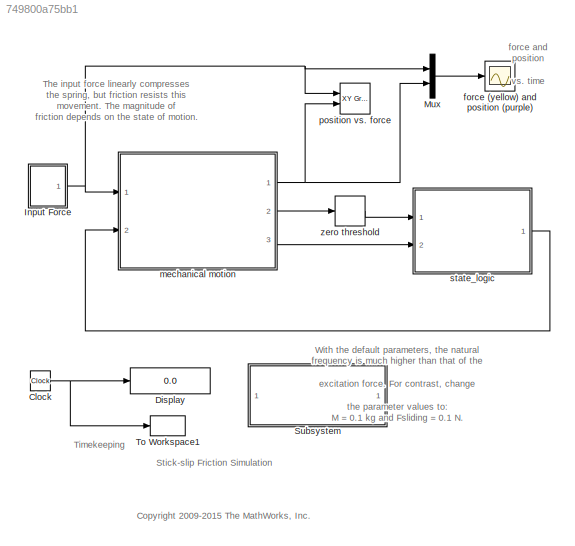
MODEL slx_749800a75bb1
KIND model
CONFIG AbsTol = 1e-6
CONFIG EnableMultiTasking = off
CONFIG FixedStep = auto
CONFIG MaxStep = auto
CONFIG MinStep = auto
CONFIG PreLoadFcn = load('sf_stickslipdat')
CONFIG RelTol = 1e-3
CONFIG SampleTimeConstraint = Unconstrained
CONFIG Solver = ode15s
CONFIG SolverName = ode15s
CONFIG StartTime = 0.0
CONFIG StopTime = 20
BLOCK [Clock] Clock
BLOCK [Display] Display
  Decimation = 1
  Ports = [1]
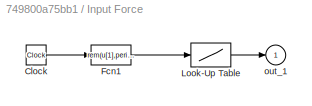
BLOCK [SubSystem] Input Force
  Ports = [0, 1]
  RequestExecContextInheritance = off
  Variant = off
BLOCK [Clock] Input Force/Clock
BLOCK [Fcn] Input Force/Fcn1
  Expr = rem(u[1],period)
BLOCK [Lookup] Input Force/Look-Up Table
  InputValues = rep_seq_t
  Table = rep_seq_y
BLOCK [Outport] Input Force/out_1
  IconDisplay = Port number
  InitialOutput = 0
BLOCK [Mux] Mux
  Inputs = 2
  Ports = [2, 1]
BLOCK [SubSystem] Subsystem
  OpenFcn = sf_stickslipedit
  Ports = []
  RequestExecContextInheritance = off
  Variant = off
BLOCK [ToWorkspace] To Workspace1
  MaxDataPoints = inf
  Ports = [1]
  SampleTime = -1
  VariableName = t
BLOCK [Scope] force (yellow) and position (purple)
  NumInputPorts = 1
  Ports = [1]
  ScopeSpecificationString = Simulink.scopes.TimeScopeBlockCfg('CurrentConfiguration', extmgr.ConfigurationSet(extmgr.Configuration('Core','General UI',true),extmgr.Configuration('Core','Source UI',true),extmgr.Configuration('Sources','WiredSimulink',true),extmgr.Configuration('Visuals','Time Domain',true,'TimeAxisLabels','All','DisplayPropertyDefaults',struct('MinYLimReal','-10','MaxYLimReal','10','YLabelReal','','MinYLimMag...<+959ch>
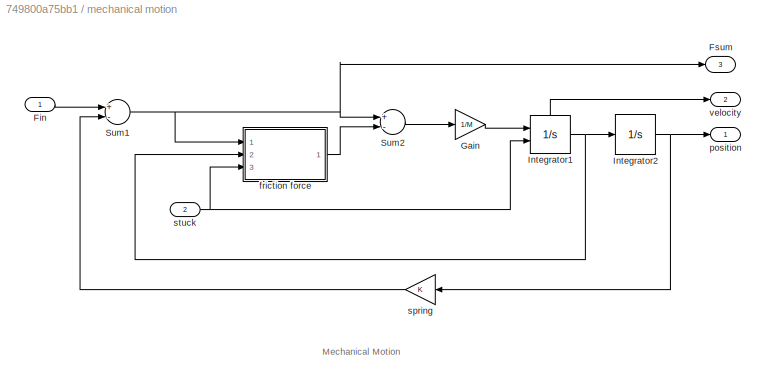
BLOCK [SubSystem] mechanical motion
  Ports = [2, 3]
  RequestExecContextInheritance = off
  Variant = off
BLOCK [Inport] mechanical motion/Fin
  IconDisplay = Port number
BLOCK [Outport] mechanical motion/Fsum
  IconDisplay = Port number
  InitialOutput = 0
  Port = 3
BLOCK [Gain] mechanical motion/Gain
  Gain = 1/M
BLOCK [Integrator] mechanical motion/Integrator1
  ExternalReset = rising
  Ports = [2, 1, 0, 0, 1]
  ShowStatePort = on
BLOCK [Integrator] mechanical motion/Integrator2
  Ports = [1, 1]
BLOCK [Sum] mechanical motion/Sum1
  Inputs = +-
  Ports = [2, 1]
BLOCK [Sum] mechanical motion/Sum2
  Inputs = +-
  Ports = [2, 1]
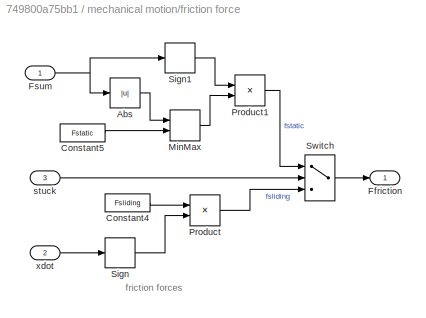
BLOCK [SubSystem] mechanical motion/friction force
  Ports = [3, 1]
  RequestExecContextInheritance = off
  Variant = off
BLOCK [Abs] mechanical motion/friction force/Abs
BLOCK [Constant] mechanical motion/friction force/Constant4
  Value = Fsliding
BLOCK [Constant] mechanical motion/friction force/Constant5
  Value = Fstatic
BLOCK [Outport] mechanical motion/friction force/Ffriction
  IconDisplay = Port number
  InitialOutput = 0
BLOCK [Inport] mechanical motion/friction force/Fsum
  IconDisplay = Port number
BLOCK [MinMax] mechanical motion/friction force/MinMax
  Inputs = 2
  Ports = [2, 1]
BLOCK [Product] mechanical motion/friction force/Product
  Ports = [2, 1]
BLOCK [Product] mechanical motion/friction force/Product1
  Ports = [2, 1]
BLOCK [Signum] mechanical motion/friction force/Sign
BLOCK [Signum] mechanical motion/friction force/Sign1
BLOCK [Switch] mechanical motion/friction force/Switch
  Threshold = .5
BLOCK [Inport] mechanical motion/friction force/stuck
  IconDisplay = Port number
  Port = 3
BLOCK [Inport] mechanical motion/friction force/xdot
  IconDisplay = Port number
  Port = 2
BLOCK [Outport] mechanical motion/position
  IconDisplay = Port number
  InitialOutput = 0
BLOCK [Gain] mechanical motion/spring
  Gain = K
BLOCK [Inport] mechanical motion/stuck
  IconDisplay = Port number
  Port = 2
BLOCK [Outport] mechanical motion/velocity
  IconDisplay = Port number
  InitialOutput = 0
  Port = 2
BLOCK [Reference] position vs. force  REF=simulink/Sinks/XY Graph
  Ports = [2]
  SourceBlock = simulink/Sinks/XY Graph
  SourceProductBaseCode = SL
  SourceProductName = Simulink
  SourceType = XY scope.
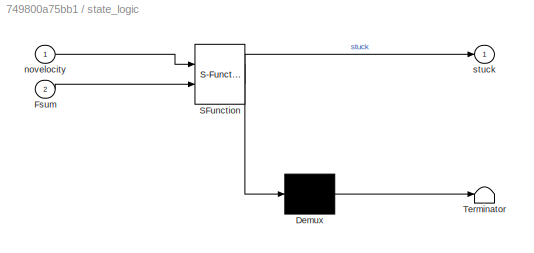
BLOCK [SubSystem] state_logic
  ErrorFcn = Stateflow.Translate.translate
  PermitHierarchicalResolution = ExplicitOnly
  Ports = [2, 1]
  RequestExecContextInheritance = off
  SFBlockType = Chart
  TreatAsAtomicUnit = on
  Variant = off
BLOCK [Demux] state_logic/ Demux 
  Outputs = 1
  Ports = [1, 1]
BLOCK [S-Function] state_logic/ SFunction 
  EnableBusSupport = off
  FunctionName = sf_sfun
  PortCounts = [2 2]
  Ports = [2, 2]
  SFcnIsStateOwnerBlock = off
  SFunctionDeploymentMode = off
  Tag = Stateflow S-Function sf_stickslip 1
BLOCK [Terminator] state_logic/ Terminator 
BLOCK [Inport] state_logic/Fsum
  IconDisplay = Port number
  Port = 2
BLOCK [Inport] state_logic/novelocity
  IconDisplay = Port number
BLOCK [Outport] state_logic/stuck
  IconDisplay = Port number
BLOCK [HitCross] zero threshold
  Ports = [1, 1]
ANNOTATION (root): <copyright redacted>
ANNOTATION (root): Stick-slip Friction Simulation
ANNOTATION (root): The input force linearly compresses the spring, but friction resists this movement. The magnitude of friction depends on the state of motion.
ANNOTATION (root): Timekeeping
ANNOTATION (root): With the default parameters, the natural frequency is much higher than that of the excitation force. For contrast, change the parameter values to: M = 0.1 kg and Fsliding = 0.1 N.
ANNOTATION (root): force and position vs. time
ANNOTATION mechanical motion: Mechanical Motion
ANNOTATION mechanical motion/friction force: friction forces
NET Clock:1 -> Display:1, To Workspace1:1
LINE Input Force/Clock:1 -> Input Force/Fcn1:1
LINE Input Force/Fcn1:1 -> Input Force/Look-Up Table:1
LINE Input Force/Look-Up Table:1 -> Input Force/out_1:1
NET Input Force:1 -> Mux:1, mechanical motion:1, position vs. force:1
LINE Mux:1 -> force (yellow) and position (purple):1
LINE mechanical motion/Fin:1 -> mechanical motion/Sum1:1
LINE mechanical motion/Gain:1 -> mechanical motion/Integrator1:1
NET mechanical motion/Integrator1:1 -> mechanical motion/Integrator2:1, mechanical motion/friction force:2
LINE mechanical motion/Integrator1:state -> mechanical motion/velocity:1
NET mechanical motion/Integrator2:1 -> mechanical motion/position:1, mechanical motion/spring:1
NET mechanical motion/Sum1:1 -> mechanical motion/Fsum:1, mechanical motion/Sum2:1, mechanical motion/friction force:1
LINE mechanical motion/Sum2:1 -> mechanical motion/Gain:1
LINE mechanical motion/friction force/Abs:1 -> mechanical motion/friction force/MinMax:1
LINE mechanical motion/friction force/Constant4:1 -> mechanical motion/friction force/Product:1
LINE mechanical motion/friction force/Constant5:1 -> mechanical motion/friction force/MinMax:2
NET mechanical motion/friction force/Fsum:1 -> mechanical motion/friction force/Abs:1, mechanical motion/friction force/Sign1:1
LINE mechanical motion/friction force/MinMax:1 -> mechanical motion/friction force/Product1:2
LINE mechanical motion/friction force/Product1:1 -> mechanical motion/friction force/Switch:1
LINE mechanical motion/friction force/Product:1 -> mechanical motion/friction force/Switch:3
LINE mechanical motion/friction force/Sign1:1 -> mechanical motion/friction force/Product1:1
LINE mechanical motion/friction force/Sign:1 -> mechanical motion/friction force/Product:2
LINE mechanical motion/friction force/Switch:1 -> mechanical motion/friction force/Ffriction:1
LINE mechanical motion/friction force/stuck:1 -> mechanical motion/friction force/Switch:2
LINE mechanical motion/friction force/xdot:1 -> mechanical motion/friction force/Sign:1
LINE mechanical motion/friction force:1 -> mechanical motion/Sum2:2
LINE mechanical motion/spring:1 -> mechanical motion/Sum1:2
NET mechanical motion/stuck:1 -> mechanical motion/Integrator1:2, mechanical motion/friction force:3
NET mechanical motion:1 -> Mux:2, position vs. force:2
LINE mechanical motion:2 -> zero threshold:1
LINE mechanical motion:3 -> state_logic:2
LINE state_logic:1 -> mechanical motion:2
LINE zero threshold:1 -> state_logic:1
note: NET lines group one-source signal fan-out (src -> all destinations, sorted); 1:1 wires keep LINE
CHART state_logic states=3 transitions=3
  STATE_LABEL 'state_of_motion'
  STATE_LABEL 'sliding/\nentry: stuck = 0;'
  STATE_LABEL 'stuck/\nentry: stuck = 1;\n'
  STATE_LABEL '[abs(Fsum) > Fstatic]'
  STATE_LABEL '[novelocity & (abs(Fsum)<= Fstatic)]'
  STATE_LABEL 'sliding/\nentry: stuck = 0;'
  STATE_LABEL 'stuck/\nentry: stuck = 1;\n'
